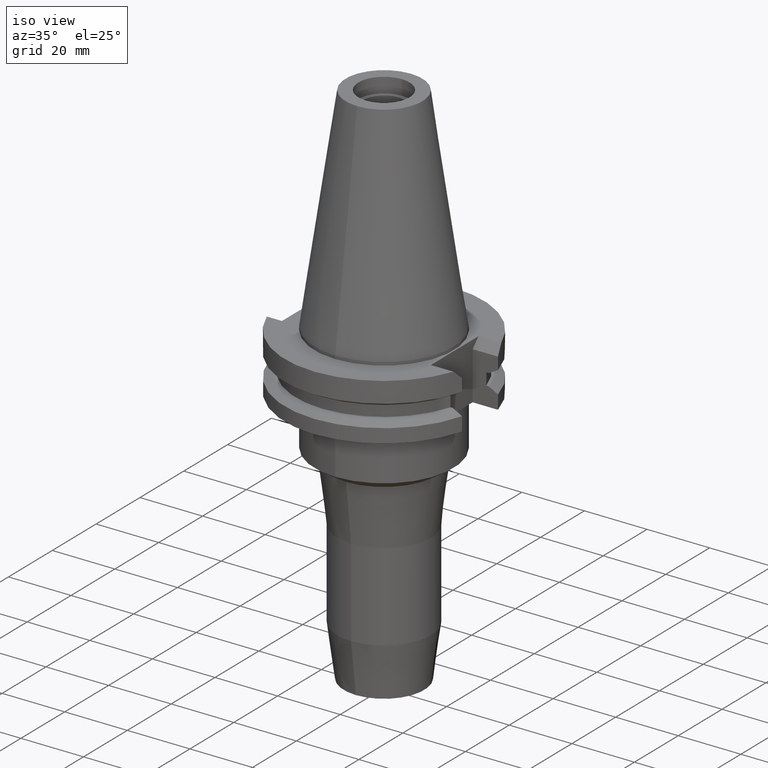
[diagram: clean part render]
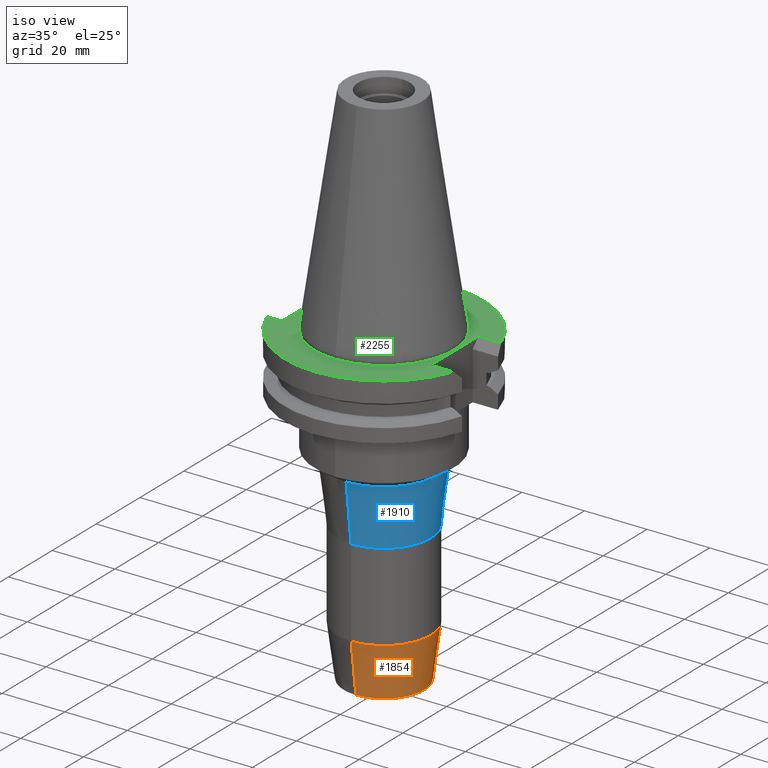
[diagram: same view with three faces highlighted in distinct colors, each labeled with its STEP entity id]
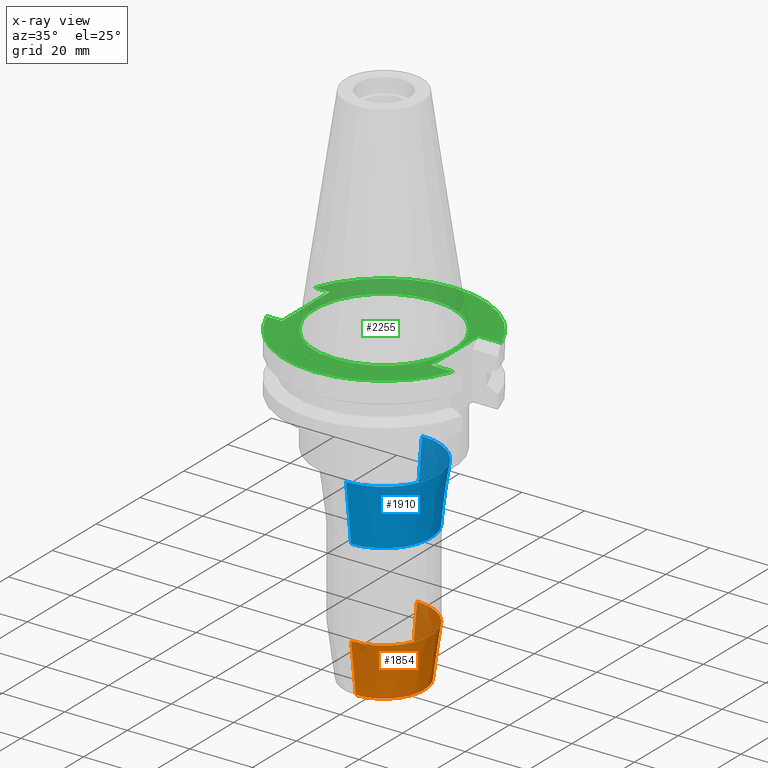
[diagram: x-ray of the same camera — body ghosted, the three highlighted faces saturated]
A machine part, iso view with three faces highlighted in distinct colors.
The next image is the same camera in x-ray (body ghosted, the three faces saturated) — at least one of them is partly hidden behind the body in this view.
Their STEP definitions:

[orange] entity #1854 — the highlighted conical surface has half-angle 7.5 deg.
#354=CARTESIAN_POINT('',(0.E0,0.E0,-1.016E2));
#355=DIRECTION('',(0.E0,0.E0,1.E0));
#356=DIRECTION('',(0.E0,-1.E0,0.E0));
#357=AXIS2_PLACEMENT_3D('',#354,#355,#356);
#386=DIRECTION('',(0.E0,-1.305261922200E-1,-9.914448613738E-1));
#387=VECTOR('',#386,1.650626562651E1);
#388=CARTESIAN_POINT('',(0.E0,1.5E1,-8.523494776413E1));
#389=LINE('',#388,#387);
#393=CARTESIAN_POINT('',(0.E0,0.E0,-8.523494776413E1));
#394=DIRECTION('',(0.E0,0.E0,1.E0));
#395=DIRECTION('',(0.E0,-1.E0,0.E0));
#396=AXIS2_PLACEMENT_3D('',#393,#394,#395);
#409=DIRECTION('',(0.E0,1.305261922200E-1,-9.914448613738E-1));
#410=VECTOR('',#409,1.650626562651E1);
#411=CARTESIAN_POINT('',(0.E0,-1.5E1,-8.523494776413E1));
#412=LINE('',#411,#410);
#1348=CARTESIAN_POINT('',(0.E0,-1.28455E1,-1.016E2));
#1349=CARTESIAN_POINT('',(0.E0,1.28455E1,-1.016E2));
#1350=VERTEX_POINT('',#1348);
#1351=VERTEX_POINT('',#1349);
#1352=CARTESIAN_POINT('',(0.E0,1.5E1,-8.523494776413E1));
#1353=VERTEX_POINT('',#1352);
#1354=CARTESIAN_POINT('',(0.E0,-1.5E1,-8.523494776413E1));
#1355=VERTEX_POINT('',#1354);
#1840=CARTESIAN_POINT('',(0.E0,0.E0,-9.341747388207E1));
#1841=DIRECTION('',(0.E0,0.E0,1.E0));
#1842=DIRECTION('',(0.E0,1.E0,0.E0));
#1843=AXIS2_PLACEMENT_3D('',#1840,#1841,#1842);
#1844=CONICAL_SURFACE('',#1843,1.392275E1,7.5E0);
#1846=ORIENTED_EDGE('',*,*,#1845,.T.);
#1847=ORIENTED_EDGE('',*,*,#1829,.F.);
#1849=ORIENTED_EDGE('',*,*,#1848,.F.);
#1851=ORIENTED_EDGE('',*,*,#1850,.T.);
#1852=EDGE_LOOP('',(#1846,#1847,#1849,#1851));
#1853=FACE_OUTER_BOUND('',#1852,.F.);
#358=CIRCLE('',#357,1.28455E1);
#397=CIRCLE('',#396,1.5E1);
#1829=EDGE_CURVE('',#1350,#1351,#358,.T.);
#1845=EDGE_CURVE('',#1353,#1351,#389,.T.);
#1848=EDGE_CURVE('',#1355,#1350,#412,.T.);
#1850=EDGE_CURVE('',#1355,#1353,#397,.T.);
#1854=ADVANCED_FACE('',(#1853),#1844,.T.);

[blue] entity #1910 — the highlighted conical surface has half-angle 7 deg.
#430=DIRECTION('',(0.E0,-1.218693434051E-1,-9.925461516413E-1));
#431=VECTOR('',#430,1.896253126480E1);
#432=CARTESIAN_POINT('',(0.E0,1.731095123454E1,-3.832881256775E1));
#433=LINE('',#432,#431);
#437=CARTESIAN_POINT('',(0.E0,0.E0,-5.715E1));
#438=DIRECTION('',(0.E0,0.E0,-1.E0));
#439=DIRECTION('',(0.E0,1.E0,0.E0));
#440=AXIS2_PLACEMENT_3D('',#437,#438,#439);
#445=CARTESIAN_POINT('',(0.E0,0.E0,-3.832881256775E1));
#446=DIRECTION('',(0.E0,0.E0,1.E0));
#447=DIRECTION('',(0.E0,-1.E0,0.E0));
#448=AXIS2_PLACEMENT_3D('',#445,#446,#447);
#453=DIRECTION('',(0.E0,1.218693434051E-1,-9.925461516413E-1));
#454=VECTOR('',#453,1.896253126480E1);
#455=CARTESIAN_POINT('',(0.E0,-1.731095123454E1,-3.832881256775E1));
#456=LINE('',#455,#454);
#1356=CARTESIAN_POINT('',(0.E0,1.5E1,-5.715E1));
#1357=VERTEX_POINT('',#1356);
#1358=CARTESIAN_POINT('',(0.E0,-1.5E1,-5.715E1));
#1359=VERTEX_POINT('',#1358);
#1360=CARTESIAN_POINT('',(0.E0,1.731095123454E1,-3.832881256775E1));
#1361=VERTEX_POINT('',#1360);
#1362=CARTESIAN_POINT('',(0.E0,-1.731095123454E1,-3.832881256775E1));
#1363=VERTEX_POINT('',#1362);
#1896=CARTESIAN_POINT('',(0.E0,0.E0,-4.773940628387E1));
#1897=DIRECTION('',(0.E0,0.E0,1.E0));
#1898=DIRECTION('',(0.E0,1.E0,0.E0));
#1899=AXIS2_PLACEMENT_3D('',#1896,#1897,#1898);
#1900=CONICAL_SURFACE('',#1899,1.615547561727E1,7.E0);
#1902=ORIENTED_EDGE('',*,*,#1901,.T.);
#1903=ORIENTED_EDGE('',*,*,#1891,.T.);
#1905=ORIENTED_EDGE('',*,*,#1904,.F.);
#1907=ORIENTED_EDGE('',*,*,#1906,.T.);
#1908=EDGE_LOOP('',(#1902,#1903,#1905,#1907));
#1909=FACE_OUTER_BOUND('',#1908,.F.);
#441=CIRCLE('',#440,1.5E1);
#449=CIRCLE('',#448,1.731095123454E1);
#1891=EDGE_CURVE('',#1357,#1359,#441,.T.);
#1901=EDGE_CURVE('',#1361,#1357,#433,.T.);
#1904=EDGE_CURVE('',#1363,#1359,#456,.T.);
#1906=EDGE_CURVE('',#1363,#1361,#449,.T.);
#1910=ADVANCED_FACE('',(#1909),#1900,.T.);

[green] entity #2255 — the highlighted planar face has unit normal (0, 0, -1).
#700=DIRECTION('',(0.E0,-1.E0,0.E0));
#701=VECTOR('',#700,2.178E1);
#702=CARTESIAN_POINT('',(-2.498E1,1.089E1,-1.E0));
#703=LINE('',#702,#701);
#806=DIRECTION('',(1.E0,-5.877118954908E-14,0.E0));
#807=VECTOR('',#806,7.253990343348E0);
#808=CARTESIAN_POINT('',(2.257E1,1.089E1,-1.E0));
#809=LINE('',#808,#807);
#823=CARTESIAN_POINT('',(2.982399034335E1,1.089E1,-1.000000000001E0));
#843=DIRECTION('',(0.E0,-1.E0,0.E0));
#844=VECTOR('',#843,2.178E1);
#845=CARTESIAN_POINT('',(2.257E1,1.089E1,-1.E0));
#846=LINE('',#845,#844);
#850=DIRECTION('',(1.E0,6.024046928781E-14,0.E0));
#851=VECTOR('',#850,7.253990343348E0);
#852=CARTESIAN_POINT('',(2.257E1,-1.089E1,-1.E0));
#853=LINE('',#852,#851);
#857=CARTESIAN_POINT('',(0.E0,2.164471368983E-14,-1.E0));
#858=DIRECTION('',(0.E0,0.E0,-1.E0));
#859=DIRECTION('',(9.393382785306E-1,-3.429921259843E-1,0.E0));
#860=AXIS2_PLACEMENT_3D('',#857,#858,#859);
#865=CARTESIAN_POINT('',(0.E0,2.164471368983E-14,-1.E0));
#866=DIRECTION('',(0.E0,0.E0,-1.E0));
#867=DIRECTION('',(0.E0,-1.E0,0.E0));
#868=AXIS2_PLACEMENT_3D('',#865,#866,#867);
#873=DIRECTION('',(-1.E0,-8.911138986209E-14,0.E0));
#874=VECTOR('',#873,4.843990343348E0);
#875=CARTESIAN_POINT('',(-2.498E1,1.089E1,-1.E0));
#876=LINE('',#875,#874);
#880=CARTESIAN_POINT('',(0.E0,2.164471368983E-14,-1.E0));
#881=DIRECTION('',(0.E0,0.E0,-1.E0));
#882=DIRECTION('',(-9.393382785306E-1,3.429921259843E-1,0.E0));
#883=AXIS2_PLACEMENT_3D('',#880,#881,#882);
#888=CARTESIAN_POINT('',(0.E0,2.164471368983E-14,-1.E0));
#889=DIRECTION('',(0.E0,0.E0,-1.E0));
#890=DIRECTION('',(0.E0,1.E0,0.E0));
#891=AXIS2_PLACEMENT_3D('',#888,#889,#890);
#896=CARTESIAN_POINT('',(0.E0,2.164471368983E-14,-1.E0));
#897=DIRECTION('',(0.E0,0.E0,1.E0));
#898=DIRECTION('',(0.E0,-1.E0,0.E0));
#899=AXIS2_PLACEMENT_3D('',#896,#897,#898);
#904=CARTESIAN_POINT('',(0.E0,2.164471368983E-14,-1.E0));
#905=DIRECTION('',(0.E0,0.E0,1.E0));
#906=DIRECTION('',(0.E0,1.E0,0.E0));
#907=AXIS2_PLACEMENT_3D('',#904,#905,#906);
#912=CARTESIAN_POINT('',(2.982399034335E1,-1.089E1,-1.000000000001E0));
#937=CARTESIAN_POINT('',(-2.982399034335E1,-1.089E1,-1.000000000001E0));
#1086=DIRECTION('',(-1.E0,8.911138986209E-14,0.E0));
#1087=VECTOR('',#1086,4.843990343348E0);
#1088=CARTESIAN_POINT('',(-2.498E1,-1.089E1,-1.E0));
#1089=LINE('',#1088,#1087);
#1394=CARTESIAN_POINT('',(2.257E1,-1.089E1,-1.E0));
#1395=VERTEX_POINT('',#1394);
#1396=CARTESIAN_POINT('',(2.257E1,1.089E1,-1.E0));
#1397=VERTEX_POINT('',#1396);
#1437=CARTESIAN_POINT('',(-2.498E1,1.089E1,-1.E0));
#1438=VERTEX_POINT('',#1437);
#1439=CARTESIAN_POINT('',(-2.498E1,-1.089E1,-1.E0));
#1440=VERTEX_POINT('',#1439);
#1483=VERTEX_POINT('',#912);
#1484=VERTEX_POINT('',#937);
#1485=CARTESIAN_POINT('',(-1.432899828923E-14,-3.175E1,-1.E0));
#1486=VERTEX_POINT('',#1485);
#1489=VERTEX_POINT('',#823);
#1490=CARTESIAN_POINT('',(1.965806880743E-14,3.175E1,-1.E0));
#1491=VERTEX_POINT('',#1490);
#1492=CARTESIAN_POINT('',(-2.982399034335E1,1.089E1,-1.E0));
#1493=VERTEX_POINT('',#1492);
#1494=CARTESIAN_POINT('',(0.E0,-2.2225E1,-1.E0));
#1495=CARTESIAN_POINT('',(0.E0,2.2225E1,-1.E0));
#1496=VERTEX_POINT('',#1494);
#1497=VERTEX_POINT('',#1495);
#2227=CARTESIAN_POINT('',(0.E0,1.212400331156E-14,-1.E0));
#2228=DIRECTION('',(0.E0,0.E0,-1.E0));
#2229=DIRECTION('',(0.E0,-1.E0,0.E0));
#2230=AXIS2_PLACEMENT_3D('',#2227,#2228,#2229);
#2231=PLANE('',#2230);
#2232=ORIENTED_EDGE('',*,*,#2022,.T.);
#2234=ORIENTED_EDGE('',*,*,#2233,.T.);
#2236=ORIENTED_EDGE('',*,*,#2235,.T.);
#2238=ORIENTED_EDGE('',*,*,#2237,.T.);
#2240=ORIENTED_EDGE('',*,*,#2239,.F.);
#2241=ORIENTED_EDGE('',*,*,#2110,.F.);
#2243=ORIENTED_EDGE('',*,*,#2242,.T.);
#2244=ORIENTED_EDGE('',*,*,#2215,.T.);
#2245=ORIENTED_EDGE('',*,*,#2213,.T.);
#2246=ORIENTED_EDGE('',*,*,#2201,.F.);
#2247=EDGE_LOOP('',(#2232,#2234,#2236,#2238,#2240,#2241,#2243,#2244,#2245,
#2246));
#2248=FACE_OUTER_BOUND('',#2247,.F.);
#2250=ORIENTED_EDGE('',*,*,#2249,.T.);
#2252=ORIENTED_EDGE('',*,*,#2251,.T.);
#2253=EDGE_LOOP('',(#2250,#2252));
#2254=FACE_BOUND('',#2253,.F.);
#861=CIRCLE('',#860,3.175E1);
#869=CIRCLE('',#868,3.175E1);
#884=CIRCLE('',#883,3.175E1);
#892=CIRCLE('',#891,3.175E1);
#900=CIRCLE('',#899,2.2225E1);
#908=CIRCLE('',#907,2.2225E1);
#2022=EDGE_CURVE('',#1397,#1395,#846,.T.);
#2110=EDGE_CURVE('',#1438,#1440,#703,.T.);
#2201=EDGE_CURVE('',#1397,#1489,#809,.T.);
#2213=EDGE_CURVE('',#1491,#1489,#892,.T.);
#2215=EDGE_CURVE('',#1493,#1491,#884,.T.);
#2233=EDGE_CURVE('',#1395,#1483,#853,.T.);
#2235=EDGE_CURVE('',#1483,#1486,#861,.T.);
#2237=EDGE_CURVE('',#1486,#1484,#869,.T.);
#2239=EDGE_CURVE('',#1440,#1484,#1089,.T.);
#2242=EDGE_CURVE('',#1438,#1493,#876,.T.);
#2249=EDGE_CURVE('',#1496,#1497,#900,.T.);
#2251=EDGE_CURVE('',#1497,#1496,#908,.T.);
#2255=ADVANCED_FACE('',(#2248,#2254),#2231,.F.);